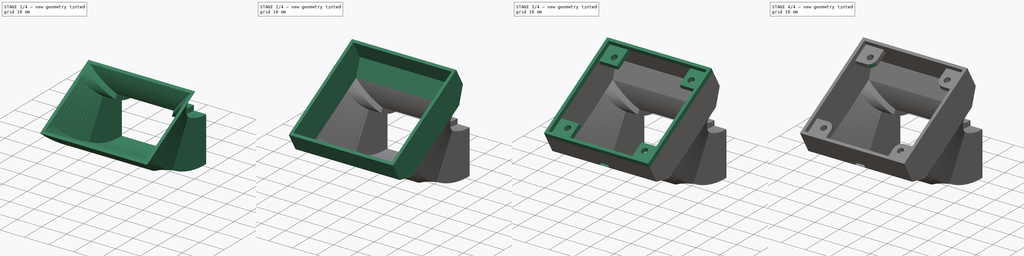
[diagram: build sequence overview — one tinted view per stage of 4, left to right]
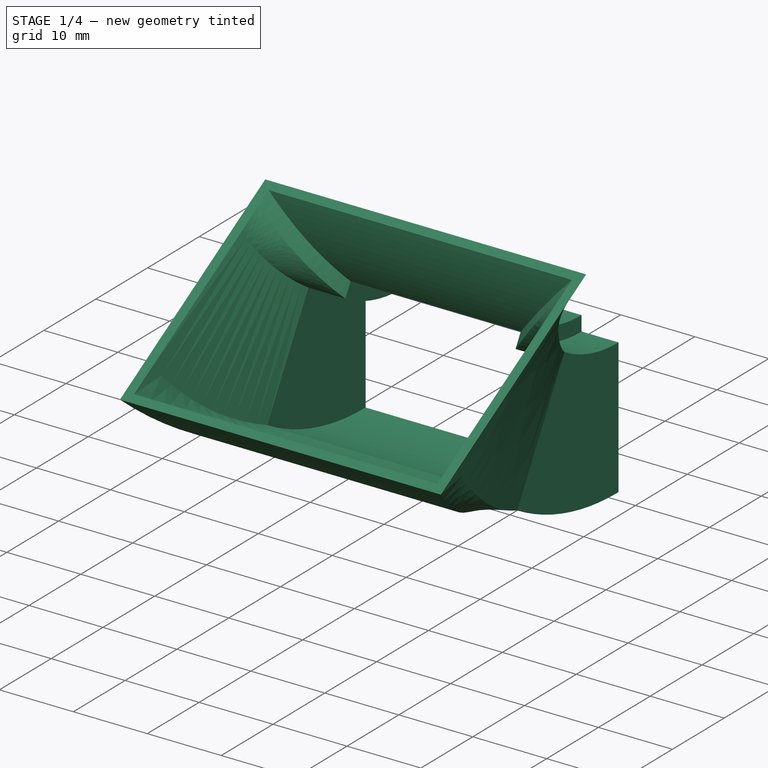
[diagram: stage 1 of 4 — iso view after this stage's code; geometry added in this stage tinted green]
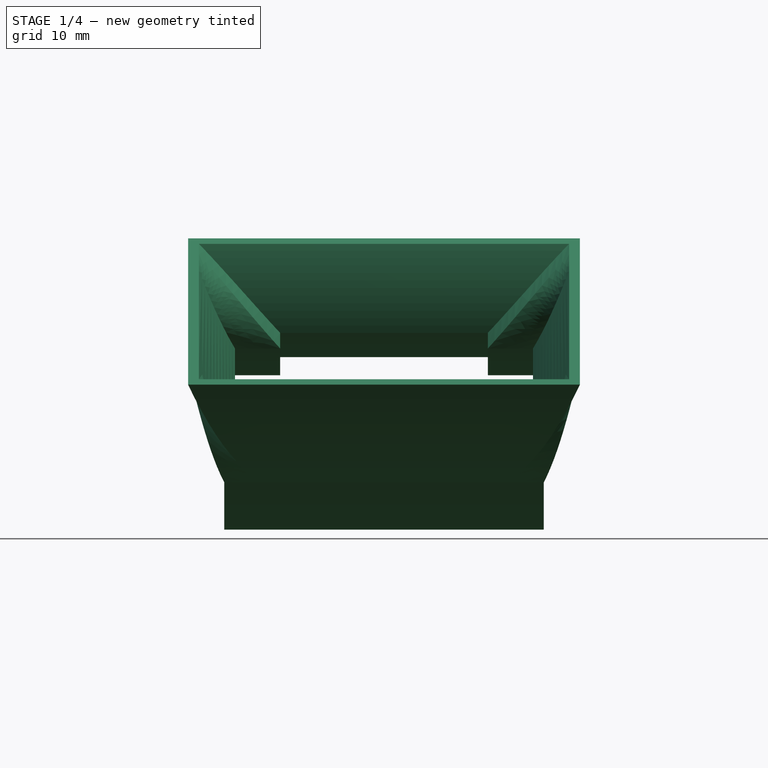
[diagram: stage 1 of 4 — front view after this stage's code; geometry added in this stage tinted green]
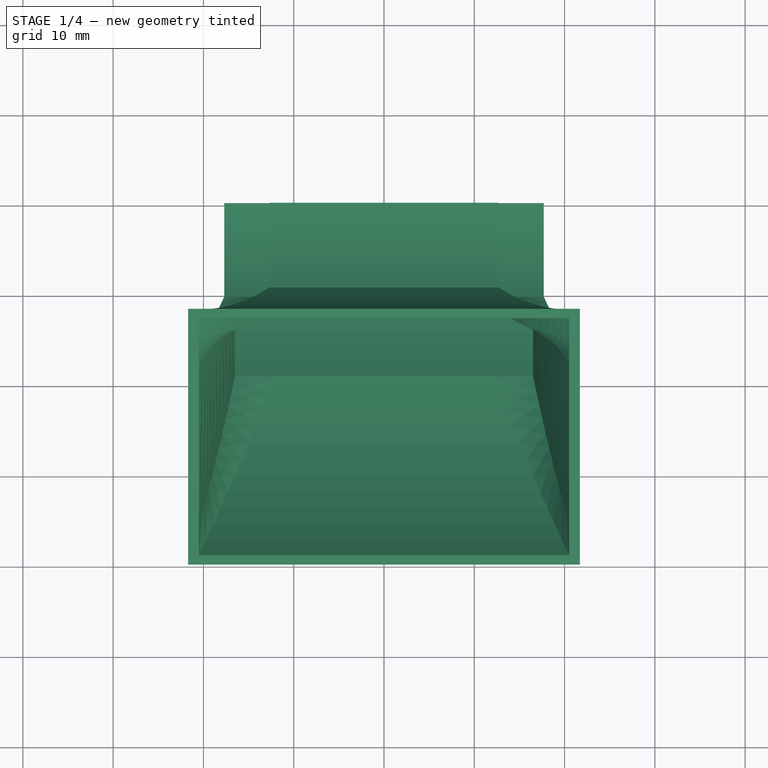
[diagram: stage 1 of 4 — top view after this stage's code; geometry added in this stage tinted green]
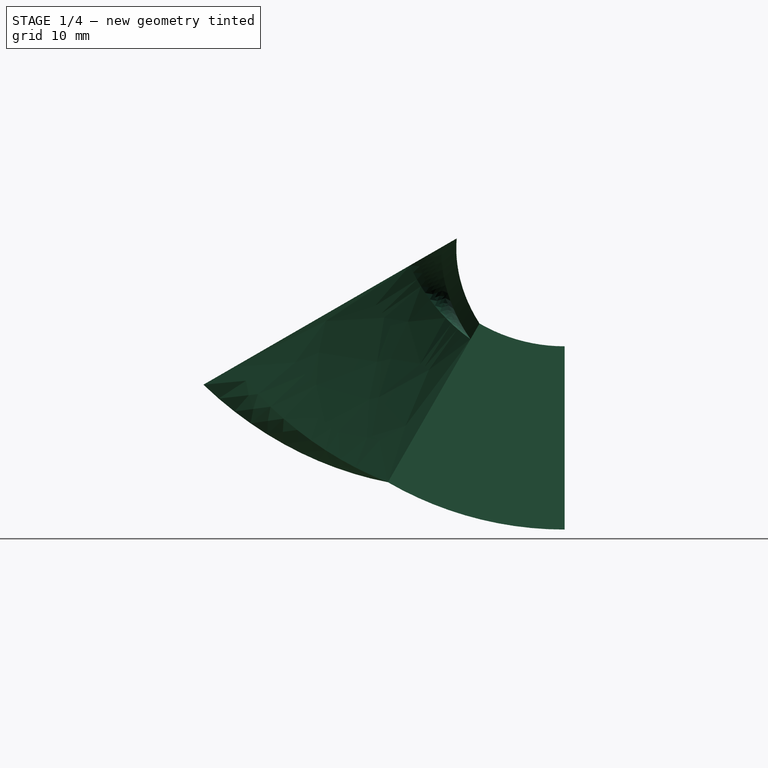
[diagram: stage 1 of 4 — right view after this stage's code; geometry added in this stage tinted green]
FCSTD DOCUMENT  (FreeCAD 0.18R15441 (Git))
Label: HotendFrontFanCase_40x40
License: All rights reserved
LicenseURL: http://en.wikipedia.org/wiki/All_rights_reserved
objects: Sketcher::SketchObject×8, PartDesign::Plane×4, PartDesign::AdditivePipe×3, PartDesign::Pad×3, PartDesign::Pocket×1, PartDesign::Fillet×1, PartDesign::Body×1, Part::FeaturePython×1, App::Part×1
note: 29 computed .brp shape members not serialized (recipe doc carries the construction recipe); baked Part::Feature solids carry a one-line shape summary decoded from their .brp

FEATURE [Sketcher::SketchObject] Sketch  label="Base"
  MapMode = 5
  Placement = pos=(0,0,0) rot=(1,0,0;1.5708rad)
  Support = -> [XZ_Plane001]
  sketch-geometry (16):
    g0: LineSegment StartX=-16.5 StartY=-7.95 StartZ=0 EndX=16.5 EndY=-7.95 EndZ=0
    g1: LineSegment StartX=-16.5 StartY=-7.95 StartZ=0 EndX=-16.5 EndY=7.95 EndZ=0
    g2: LineSegment StartX=-16.5 StartY=7.95 StartZ=0 EndX=-11.5 EndY=7.95 EndZ=0
    g3: LineSegment StartX=-11.5 StartY=7.95 StartZ=0 EndX=-11.5 EndY=9.95 EndZ=0
    g4: LineSegment StartX=-11.5 StartY=9.95 StartZ=0 EndX=11.5 EndY=9.95 EndZ=0
    g5: LineSegment StartX=11.5 StartY=9.95 StartZ=0 EndX=11.5 EndY=7.95 EndZ=0
    g6: LineSegment StartX=11.5 StartY=7.95 StartZ=0 EndX=16.5 EndY=7.95 EndZ=0
    g7: LineSegment StartX=16.5 StartY=7.95 StartZ=0 EndX=16.5 EndY=-7.95 EndZ=0
    g8: LineSegment StartX=-17.7 StartY=-9.15 StartZ=0 EndX=17.7 EndY=-9.15 EndZ=0
    g9: LineSegment StartX=-17.7 StartY=-9.15 StartZ=0 EndX=-17.7 EndY=9.15 EndZ=0
    g10: LineSegment StartX=-17.7 StartY=9.15 StartZ=0 EndX=-12.7 EndY=9.15 EndZ=0
    g11: LineSegment StartX=-12.7 StartY=9.15 StartZ=0 EndX=-12.7 EndY=11.15 EndZ=0
    g12: LineSegment StartX=-12.7 StartY=11.15 StartZ=0 EndX=12.7 EndY=11.15 EndZ=0
    g13: LineSegment StartX=12.7 StartY=11.15 StartZ=0 EndX=12.7 EndY=9.15 EndZ=0
    g14: LineSegment StartX=12.7 StartY=9.15 StartZ=0 EndX=17.7 EndY=9.15 EndZ=0
    g15: LineSegment StartX=17.7 StartY=9.15 StartZ=0 EndX=17.7 EndY=-9.15 EndZ=0
  constraints (45):
    c: Coincident(g1,g0)
    c: Coincident(g2,g1)
    c: Coincident(g3,g2)
    c: Vertical(g3)
    c: Coincident(g4,g3)
    c: Horizontal(g4)
    c: Coincident(g5,g4)
    c: Vertical(g5)
    c: Coincident(g6,g5)
    c: Horizontal(g6)
    c: Coincident(g7,g6)
    c: Coincident(g7,g0)
    c: Symmetric(g0,g0,g-2)
    c: Vertical(g7)
    c: Horizontal(g2)
    c: Equal(g2,g6)
    c: Equal(g7,g1)
    c: Distance(g0) = 33
    c: Distance(g1) = 15.9
    c: Distance(g4) = 23
    c: Distance(g3) = 2
    c: Symmetric(g0,g1,g-1)
    c: Vertical(g9)
    c: Coincident(g10,g9)
    c: Horizontal(g10)
    c: Coincident(g11,g10)
    c: Vertical(g11)
    c: Coincident(g12,g11)
    c: Horizontal(g12)
    c: Coincident(g13,g12)
    c: Vertical(g13)
    c: Coincident(g14,g13)
    c: Horizontal(g14)
    c: Coincident(g15,g14)
    c: Vertical(g15)
    c: Equal(g9,g15)
    c: Equal(g10,g14)
    c: Distance(g1,g9) = 1.2
    c: Distance(g1,g10) = 1.2
    c: Distance(g10,g3) = 1.2
    c: Distance(g3,g12) = 1.2
    c: Coincident(g8,g15)
    c: Coincident(g9,g8)
    c: Distance(g0,g8) = 1.2
    c: Symmetric(g8,g8,g-2)
FEATURE [Sketcher::SketchObject] Sketch001  label="ExtrudePathSketch"
  MapMode = 5
  Placement = pos=(0,0,0) rot=(0.57735,0.57735,0.57735;2.0944rad)
  Support = -> [YZ_Plane001]
  sketch-geometry (3):
    g0: ArcOfCircle CenterX=0 CenterY=30 CenterZ=0 NormalX=0 NormalY=0 NormalZ=1 AngleXU=0 Radius=30 StartAngle=3.66519 EndAngle=4.18879
    g1: LineSegment StartX=-25.9808 StartY=15 StartZ=0 EndX=-28.4808 EndY=19.3301 EndZ=0
    g2: ArcOfCircle CenterX=0 CenterY=30 CenterZ=0 NormalX=0 NormalY=0 NormalZ=1 AngleXU=0 Radius=30 StartAngle=4.18879 EndAngle=4.71239
  constraints (9):
    c: Angle(g0) = 0.523599
    c: Tangent(g1,g0) = 1.5708
    c: Distance(g1) = 5
    c: Radius(g0) = 30
    c: PointOnObject(g0,g-2)
    c: Coincident(g2,g0)
    c: Coincident(g2,g-1)
    c: Coincident(g0,g2)
    c: Angle(g2) = 0.523599
FEATURE [PartDesign::Plane] DatumPlane  label="PipePlane2"
  Length = 55.0626
  MapMode = 7
  Placement = pos=(-4.6242e-12,-25.9808,15) rot=(1,0,0;0.523599rad)
  ResizeMode = 0
  Support = -> [Sketch001]
  Width = 90.0133
FEATURE [Sketcher::SketchObject] Sketch002  label="Section2"
  MapMode = 5
  Placement = pos=(-4.6242e-12,-25.9808,15) rot=(1,0,0;0.523599rad)
  Support = -> [DatumPlane]
  sketch-geometry (8):
    g0: LineSegment StartX=-20.5 StartY=15 StartZ=0 EndX=20.5 EndY=15 EndZ=0
    g1: LineSegment StartX=20.5 StartY=15 StartZ=0 EndX=20.5 EndY=-15 EndZ=0
    g2: LineSegment StartX=20.5 StartY=-15 StartZ=0 EndX=-20.5 EndY=-15 EndZ=0
    g3: LineSegment StartX=-20.5 StartY=-15 StartZ=0 EndX=-20.5 EndY=15 EndZ=0
    g4: LineSegment StartX=-21.7 StartY=16.2 StartZ=0 EndX=21.7 EndY=16.2 EndZ=0
    g5: LineSegment StartX=21.7 StartY=16.2 StartZ=0 EndX=21.7 EndY=-16.2 EndZ=0
    g6: LineSegment StartX=21.7 StartY=-16.2 StartZ=0 EndX=-21.7 EndY=-16.2 EndZ=0
    g7: LineSegment StartX=-21.7 StartY=-16.2 StartZ=0 EndX=-21.7 EndY=16.2 EndZ=0
  constraints (20):
    c: Coincident(g0,g1)
    c: Coincident(g1,g2)
    c: Coincident(g2,g3)
    c: Coincident(g3,g0)
    c: Horizontal(g0)
    c: Vertical(g3)
    c: Symmetric(g0,g1,g-1)
    c: Symmetric(g1,g2,g-2)
    c: Coincident(g4,g5)
    c: Coincident(g5,g6)
    c: Coincident(g6,g7)
    c: Coincident(g7,g4)
    c: Horizontal(g4)
    c: Vertical(g7)
    c: Symmetric(g5,g4,g-1)
    c: Symmetric(g5,g6,g-2)
    c: Distance(g4,g1) = 1.2
    c: Distance(g0) = 41
    c: Distance(g0,g4) = 1.2
    c: Distance(g1) = 30
FEATURE [PartDesign::Plane] DatumPlane001  label="PipePlane3"
  Length = 55.0626
  MapMode = 7
  Placement = pos=(-5.3952e-12,-28.4808,19.3301) rot=(1,0,0;0.523599rad)
  ResizeMode = 0
  Support = -> [Sketch001]
  Width = 90.0133
FEATURE [Sketcher::SketchObject] Sketch003  label="Section3"
  MapMode = 5
  Placement = pos=(-5.3952e-12,-28.4808,19.3301) rot=(1,0,0;0.523599rad)
  Support = -> [DatumPlane001]
  sketch-geometry (8):
    g0: LineSegment StartX=-20.5 StartY=20.5 StartZ=0 EndX=20.5 EndY=20.5 EndZ=0
    g1: LineSegment StartX=20.5 StartY=20.5 StartZ=0 EndX=20.5 EndY=-20.5 EndZ=0
    g2: LineSegment StartX=20.5 StartY=-20.5 StartZ=0 EndX=-20.5 EndY=-20.5 EndZ=0
    g3: LineSegment StartX=-20.5 StartY=-20.5 StartZ=0 EndX=-20.5 EndY=20.5 EndZ=0
    g4: LineSegment StartX=-21.7 StartY=21.7 StartZ=0 EndX=21.7 EndY=21.7 EndZ=0
    g5: LineSegment StartX=21.7 StartY=21.7 StartZ=0 EndX=21.7 EndY=-21.7 EndZ=0
    g6: LineSegment StartX=21.7 StartY=-21.7 StartZ=0 EndX=-21.7 EndY=-21.7 EndZ=0
    g7: LineSegment StartX=-21.7 StartY=-21.7 StartZ=0 EndX=-21.7 EndY=21.7 EndZ=0
  constraints (20):
    c: Coincident(g0,g1)
    c: Coincident(g1,g2)
    c: Coincident(g2,g3)
    c: Coincident(g3,g0)
    c: Horizontal(g0)
    c: Vertical(g3)
    c: Symmetric(g0,g1,g-1)
    c: Symmetric(g1,g2,g-2)
    c: Coincident(g4,g5)
    c: Coincident(g5,g6)
    c: Coincident(g6,g7)
    c: Coincident(g7,g4)
    c: Horizontal(g4)
    c: Vertical(g7)
    c: Symmetric(g5,g4,g-1)
    c: Symmetric(g5,g6,g-2)
    c: Distance(g4,g1) = 1.2
    c: Distance(g0) = 41
    c: Distance(g0,g4) = 1.2
    c: Distance(g1) = 41
FEATURE [PartDesign::Plane] DatumPlane002  label="PipePlane4"
  AttachmentOffset = pos=(0,0,8) rot=(0,0,1;0rad)
  Length = 55.0626
  MapMode = 2
  Placement = pos=(-6.6286e-12,-32.4808,26.2583) rot=(1,0,0;0.523599rad)
  ResizeMode = 0
  Support = -> [DatumPlane001]
  Width = 90.0133
FEATURE [Sketcher::SketchObject] Sketch004  label="FanClipSketch"
  MapMode = 5
  Placement = pos=(-6.6286e-12,-32.4808,26.2583) rot=(1,0,0;0.523599rad)
  Support = -> [DatumPlane002]
  sketch-geometry (20):
    g0: LineSegment StartX=-21.7 StartY=21.7 StartZ=0 EndX=21.7 EndY=21.7 EndZ=0
    g1: LineSegment StartX=21.7 StartY=21.7 StartZ=0 EndX=21.7 EndY=-21.7 EndZ=0
    g2: LineSegment StartX=21.7 StartY=-21.7 StartZ=0 EndX=-21.7 EndY=-21.7 EndZ=0
    g3: LineSegment StartX=-21.7 StartY=-21.7 StartZ=0 EndX=-21.7 EndY=21.7 EndZ=0
    g4: LineSegment StartX=-20.5 StartY=13 StartZ=0 EndX=-20.5 EndY=-13 EndZ=0
    g5: LineSegment StartX=-20.5 StartY=-13 StartZ=0 EndX=-13 EndY=-13 EndZ=0
    g6: LineSegment StartX=-13 StartY=-13 StartZ=0 EndX=-13 EndY=-20.5 EndZ=0
    g7: LineSegment StartX=-13 StartY=-20.5 StartZ=0 EndX=13 EndY=-20.5 EndZ=0
    g8: LineSegment StartX=13 StartY=-20.5 StartZ=0 EndX=13 EndY=-13 EndZ=0
    g9: LineSegment StartX=13 StartY=-13 StartZ=0 EndX=20.5 EndY=-13 EndZ=0
    g10: LineSegment StartX=20.5 StartY=-13 StartZ=0 EndX=20.5 EndY=13 EndZ=0
    g11: LineSegment StartX=20.5 StartY=13 StartZ=0 EndX=13 EndY=13 EndZ=0
    g12: LineSegment StartX=13 StartY=13 StartZ=0 EndX=13 EndY=20.5 EndZ=0
    g13: LineSegment StartX=13 StartY=20.5 StartZ=0 EndX=-13 EndY=20.5 EndZ=0
    g14: LineSegment StartX=-13 StartY=20.5 StartZ=0 EndX=-13 EndY=13 EndZ=0
    g15: LineSegment StartX=-13 StartY=13 StartZ=0 EndX=-20.5 EndY=13 EndZ=0
    g16: Circle CenterX=-16 CenterY=16 CenterZ=0 NormalX=0 NormalY=0 NormalZ=1 AngleXU=0 Radius=1.25
    g17: Circle CenterX=16 CenterY=16 CenterZ=0 NormalX=0 NormalY=0 NormalZ=1 AngleXU=0 Radius=1.25
    g18: Circle CenterX=16 CenterY=-16 CenterZ=0 NormalX=0 NormalY=0 NormalZ=1 AngleXU=0 Radius=1.25
    g19: Circle CenterX=-16 CenterY=-16 CenterZ=0 NormalX=0 NormalY=0 NormalZ=1 AngleXU=0 Radius=1.25
  constraints (53):
    c: Coincident(g0,g1)
    c: Coincident(g1,g2)
    c: Coincident(g2,g3)
    c: Coincident(g3,g0)
    c: Horizontal(g0)
    c: Vertical(g3)
    c: Symmetric(g1,g0,g-1)
    c: Symmetric(g1,g2,g-2)
    c: Coincident(g5,g4)
    c: Horizontal(g5)
    c: Coincident(g6,g5)
    c: Vertical(g6)
    c: Coincident(g7,g6)
    c: Coincident(g8,g7)
    c: Vertical(g8)
    c: Coincident(g9,g8)
    c: Horizontal(g9)
    c: Coincident(g10,g9)
    c: Vertical(g10)
    c: Coincident(g11,g10)
    c: Horizontal(g11)
    c: Coincident(g12,g11)
    c: Vertical(g12)
    c: Coincident(g13,g12)
    c: Horizontal(g13)
    c: Coincident(g14,g13)
    c: Coincident(g15,g14)
    c: Coincident(g15,g4)
    c: Equal(g13,g7)
    c: Equal(g4,g10)
    c: Equal(g6,g5)
    c: Equal(g5,g15)
    c: Equal(g15,g14)
    c: Equal(g14,g12)
    c: Equal(g12,g11)
    c: Equal(g11,g9)
    c: Equal(g9,g8)
    c: Symmetric(g4,g4,g-1)
    c: Symmetric(g6,g7,g-2)
    c: Distance(g4,g10) = 41
    c: Distance(g12,g7) = 41
    c: Distance(g10,g1) = 1.2
    c: Distance(g12,g0) = 1.2
    c: Symmetric(g18,g19,g-2)
    c: Symmetric(g18,g17,g-1)
    c: Symmetric(g17,g16,g-2)
    c: Equal(g19,g18)
    c: Equal(g18,g17)
    c: Equal(g17,g16)
    c: Radius(g16) = 1.25
    c: Distance(g19,g18) = 32
    c: Distance(g18,g17) = 32
    c: Distance(g16,g15) = 3
FEATURE [Sketcher::SketchObject] Sketch005  label="FanClipWallSketch"
  MapMode = 5
  Placement = pos=(-6.6286e-12,-32.4808,26.2583) rot=(1,0,0;0.523599rad)
  Support = -> [DatumPlane002]
  sketch-geometry (8):
    g0: LineSegment StartX=-20.5 StartY=20.5 StartZ=0 EndX=20.5 EndY=20.5 EndZ=0
    g1: LineSegment StartX=20.5 StartY=20.5 StartZ=0 EndX=20.5 EndY=-20.5 EndZ=0
    g2: LineSegment StartX=20.5 StartY=-20.5 StartZ=0 EndX=-20.5 EndY=-20.5 EndZ=0
    g3: LineSegment StartX=-20.5 StartY=-20.5 StartZ=0 EndX=-20.5 EndY=20.5 EndZ=0
    g4: LineSegment StartX=-21.7 StartY=21.7 StartZ=0 EndX=21.7 EndY=21.7 EndZ=0
    g5: LineSegment StartX=21.7 StartY=21.7 StartZ=0 EndX=21.7 EndY=-21.7 EndZ=0
    g6: LineSegment StartX=21.7 StartY=-21.7 StartZ=0 EndX=-21.7 EndY=-21.7 EndZ=0
    g7: LineSegment StartX=-21.7 StartY=-21.7 StartZ=0 EndX=-21.7 EndY=21.7 EndZ=0
  constraints (20):
    c: Coincident(g0,g1)
    c: Coincident(g1,g2)
    c: Coincident(g2,g3)
    c: Coincident(g3,g0)
    c: Horizontal(g0)
    c: Vertical(g3)
    c: Symmetric(g0,g1,g-1)
    c: Symmetric(g1,g2,g-2)
    c: Coincident(g4,g5)
    c: Coincident(g5,g6)
    c: Coincident(g6,g7)
    c: Coincident(g7,g4)
    c: Horizontal(g4)
    c: Vertical(g7)
    c: Symmetric(g5,g4,g-1)
    c: Symmetric(g5,g6,g-2)
    c: Distance(g4,g1) = 1.2
    c: Distance(g0) = 41
    c: Distance(g0,g4) = 1.2
    c: Distance(g1) = 41
FEATURE [PartDesign::Plane] DatumPlane003  label="PipePlane1"
  Length = 54.6908
  MapMode = 7
  Placement = pos=(-2.1458e-12,-15,4.01924) rot=(1,0,0;1.0472rad)
  ResizeMode = 0
  Support = -> [Sketch001]
  Width = 84.7245
FEATURE [Sketcher::SketchObject] Sketch006  label="Section1"
  MapMode = 5
  Placement = pos=(-2.1458e-12,-15,4.01924) rot=(1,0,0;1.0472rad)
  Support = -> [DatumPlane003]
  sketch-geometry (16):
    g0: LineSegment StartX=-16.5 StartY=-7.95 StartZ=0 EndX=16.5 EndY=-7.95 EndZ=0
    g1: LineSegment StartX=-16.5 StartY=-7.95 StartZ=0 EndX=-16.5 EndY=7.95 EndZ=0
    g2: LineSegment StartX=-16.5 StartY=7.95 StartZ=0 EndX=-11.5 EndY=7.95 EndZ=0
    g3: LineSegment StartX=-11.5 StartY=7.95 StartZ=0 EndX=-11.5 EndY=9.95 EndZ=0
    g4: LineSegment StartX=-11.5 StartY=9.95 StartZ=0 EndX=11.5 EndY=9.95 EndZ=0
    g5: LineSegment StartX=11.5 StartY=9.95 StartZ=0 EndX=11.5 EndY=7.95 EndZ=0
    g6: LineSegment StartX=11.5 StartY=7.95 StartZ=0 EndX=16.5 EndY=7.95 EndZ=0
    g7: LineSegment StartX=16.5 StartY=7.95 StartZ=0 EndX=16.5 EndY=-7.95 EndZ=0
    g8: LineSegment StartX=-17.7 StartY=-9.15 StartZ=0 EndX=17.7 EndY=-9.15 EndZ=0
    g9: LineSegment StartX=-17.7 StartY=-9.15 StartZ=0 EndX=-17.7 EndY=9.15 EndZ=0
    g10: LineSegment StartX=-17.7 StartY=9.15 StartZ=0 EndX=-12.7 EndY=9.15 EndZ=0
    g11: LineSegment StartX=-12.7 StartY=9.15 StartZ=0 EndX=-12.7 EndY=11.15 EndZ=0
    g12: LineSegment StartX=-12.7 StartY=11.15 StartZ=0 EndX=12.7 EndY=11.15 EndZ=0
    g13: LineSegment StartX=12.7 StartY=11.15 StartZ=0 EndX=12.7 EndY=9.15 EndZ=0
    g14: LineSegment StartX=12.7 StartY=9.15 StartZ=0 EndX=17.7 EndY=9.15 EndZ=0
    g15: LineSegment StartX=17.7 StartY=9.15 StartZ=0 EndX=17.7 EndY=-9.15 EndZ=0
  constraints (45):
    c: Coincident(g1,g0)
    c: Coincident(g2,g1)
    c: Coincident(g3,g2)
    c: Vertical(g3)
    c: Coincident(g4,g3)
    c: Horizontal(g4)
    c: Coincident(g5,g4)
    c: Vertical(g5)
    c: Coincident(g6,g5)
    c: Horizontal(g6)
    c: Coincident(g7,g6)
    c: Coincident(g7,g0)
    c: Symmetric(g0,g0,g-2)
    c: Vertical(g7)
    c: Horizontal(g2)
    c: Equal(g2,g6)
    c: Equal(g7,g1)
    c: Distance(g0) = 33
    c: Distance(g1) = 15.9
    c: Distance(g4) = 23
    c: Distance(g3) = 2
    c: Symmetric(g0,g1,g-1)
    c: Vertical(g9)
    c: Coincident(g10,g9)
    c: Horizontal(g10)
    c: Coincident(g11,g10)
    c: Vertical(g11)
    c: Coincident(g12,g11)
    c: Horizontal(g12)
    c: Coincident(g13,g12)
    c: Vertical(g13)
    c: Coincident(g14,g13)
    c: Horizontal(g14)
    c: Coincident(g15,g14)
    c: Vertical(g15)
    c: Equal(g9,g15)
    c: Equal(g10,g14)
    c: Distance(g1,g9) = 1.2
    c: Distance(g1,g10) = 1.2
    c: Distance(g10,g3) = 1.2
    c: Distance(g3,g12) = 1.2
    c: Coincident(g8,g15)
    c: Coincident(g9,g8)
    c: Distance(g0,g8) = 1.2
    c: Symmetric(g8,g8,g-2)
FEATURE [PartDesign::AdditivePipe] AdditivePipe  label="PipeBase1"
  AuxilleryCurvelinear = true
  AuxillerySpineTangent = false
  Binormal = (0,0,0)
  Mode = 0
  Placement = pos=(0,0,0) rot=(1,0,0;1.5708rad)
  Profile = -> Sketch
  Spine = -> Sketch001 [Edge3]
  SpineTangent = false
  Transformation = 0
  Transition = 0
FEATURE [PartDesign::AdditivePipe] AdditivePipe001  label="PipeSection2"
  AuxilleryCurvelinear = true
  AuxillerySpineTangent = false
  BaseFeature = -> AdditivePipe
  Binormal = (0,0,0)
  Mode = 0
  Placement = pos=(0,0,0) rot=(1,0,0;1.5708rad)
  Profile = -> Sketch006
  Sections = -> [Sketch002]
  Spine = -> Sketch001 [Edge2]
  SpineTangent = false
  Transformation = 1
  Transition = 0
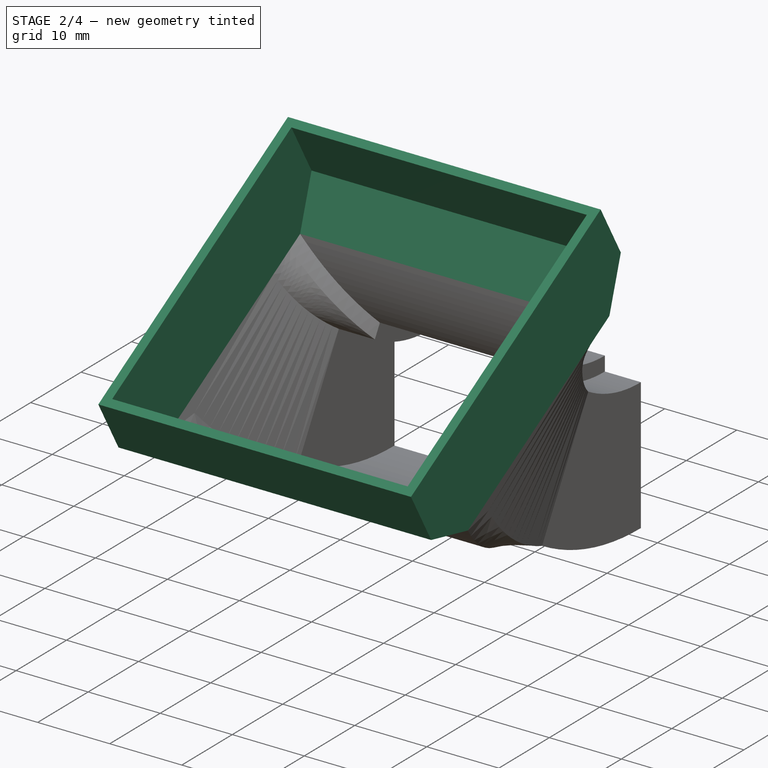
[diagram: stage 2 of 4 — iso view after this stage's code; geometry added in this stage tinted green]
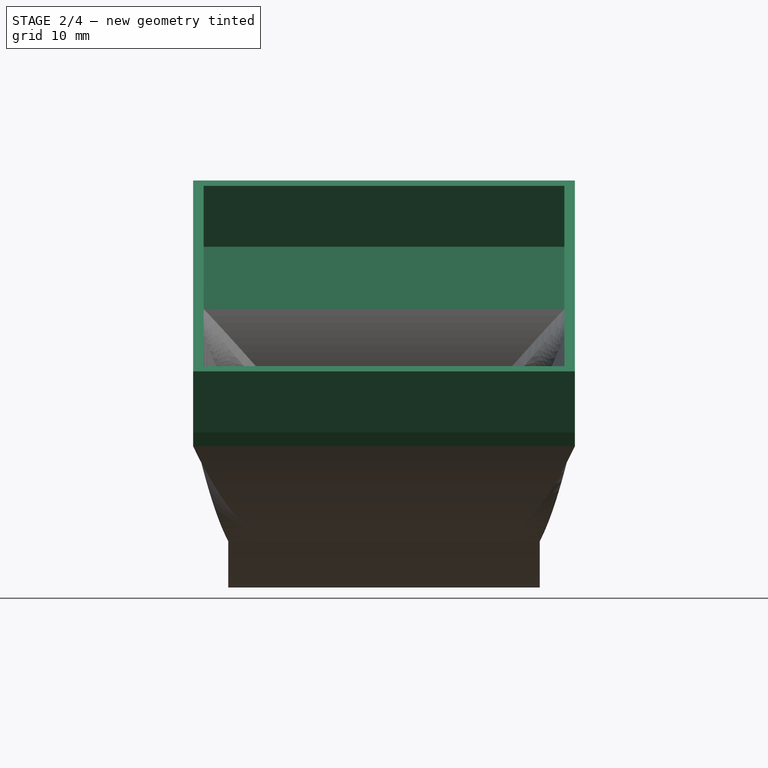
[diagram: stage 2 of 4 — front view after this stage's code; geometry added in this stage tinted green]
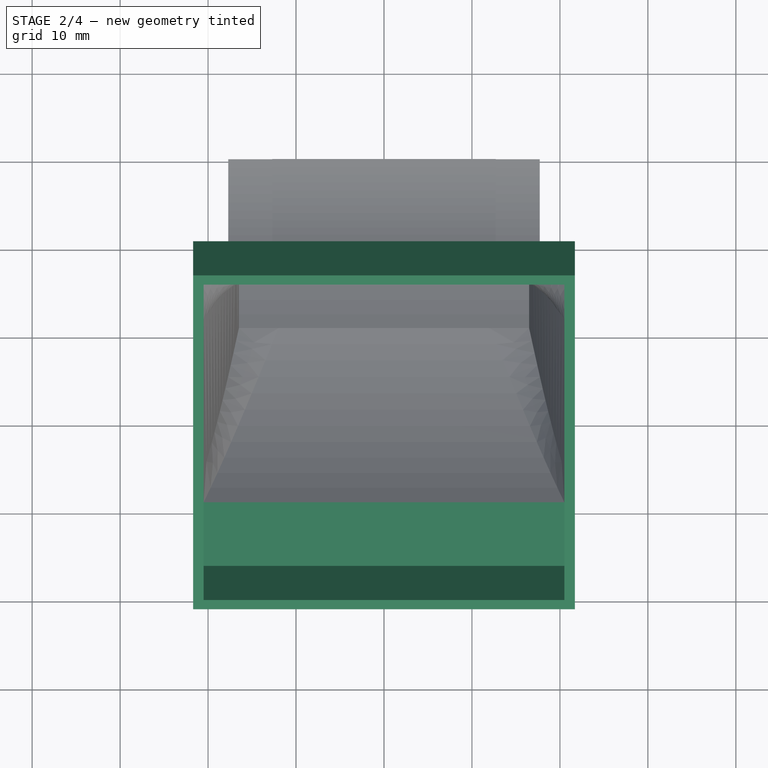
[diagram: stage 2 of 4 — top view after this stage's code; geometry added in this stage tinted green]
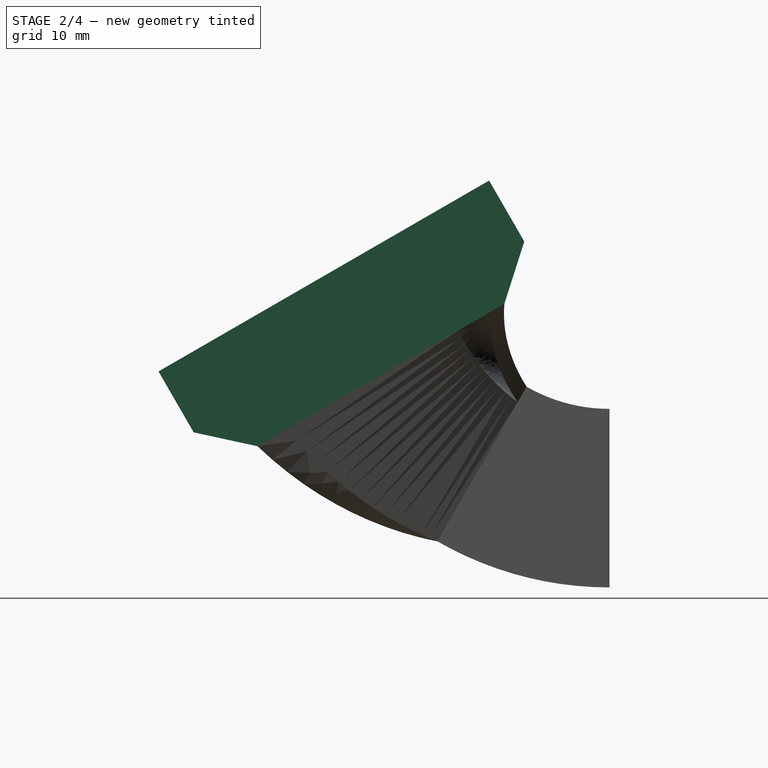
[diagram: stage 2 of 4 — right view after this stage's code; geometry added in this stage tinted green]
FEATURE [PartDesign::AdditivePipe] AdditivePipe002  label="PipeSection3"
  AuxilleryCurvelinear = true
  AuxillerySpineTangent = false
  BaseFeature = -> AdditivePipe001
  Binormal = (0,0,0)
  Mode = 0
  Placement = pos=(0,0,0) rot=(1,0,0;1.5708rad)
  Profile = -> Sketch002
  Sections = -> [Sketch003]
  Spine = -> Sketch001 [Edge1]
  SpineTangent = false
  Transformation = 1
  Transition = 0
FEATURE [PartDesign::Pad] Pad  label="PipeSection4"
  BaseFeature = -> AdditivePipe002
  Length = 10
  Length2 = 100
  Placement = pos=(0,0,0) rot=(1,0,0;1.5708rad)
  Profile = -> Sketch003
  Type = 3
  UpToFace = -> DatumPlane002
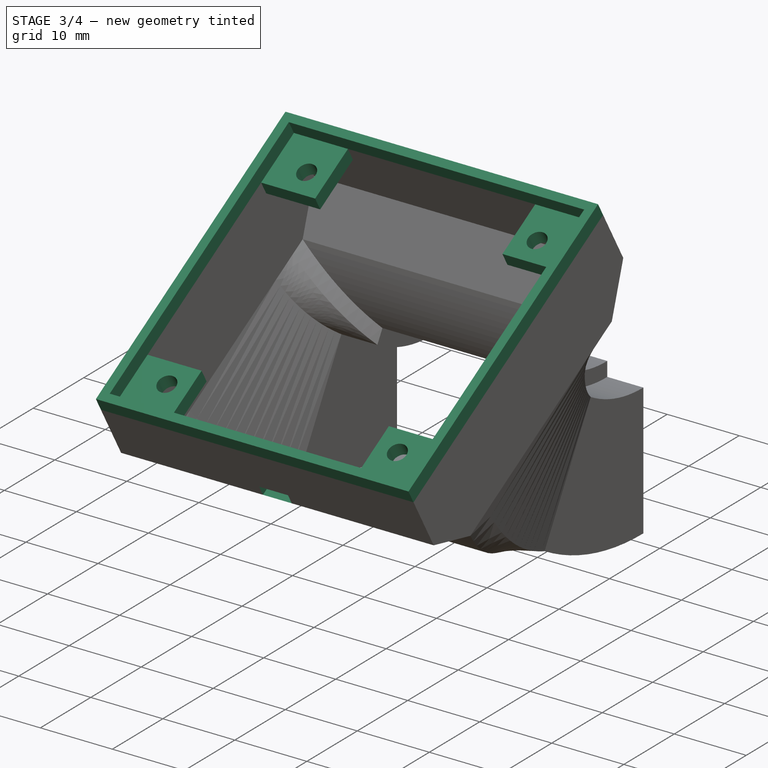
[diagram: stage 3 of 4 — iso view after this stage's code; geometry added in this stage tinted green]
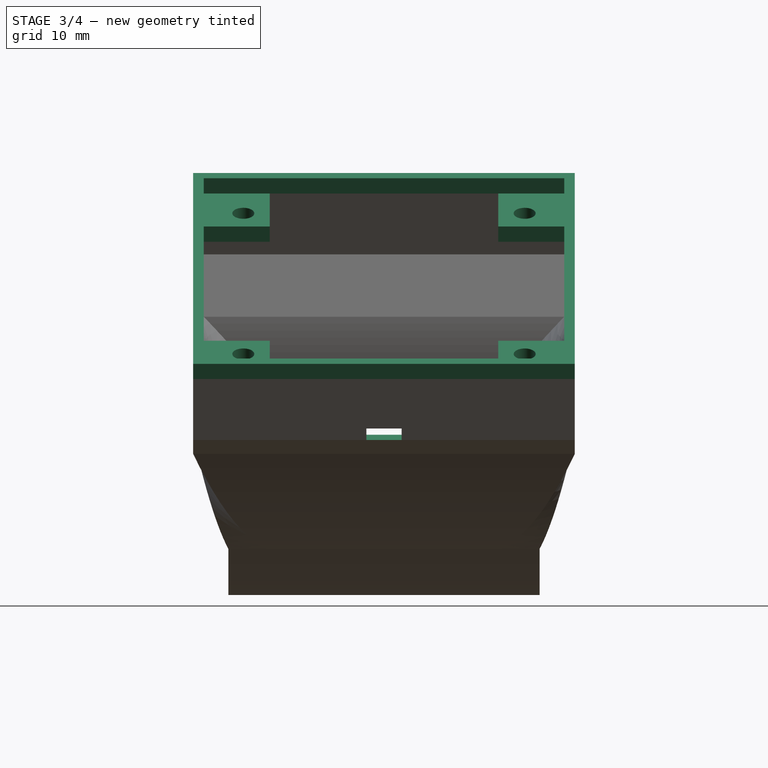
[diagram: stage 3 of 4 — front view after this stage's code; geometry added in this stage tinted green]
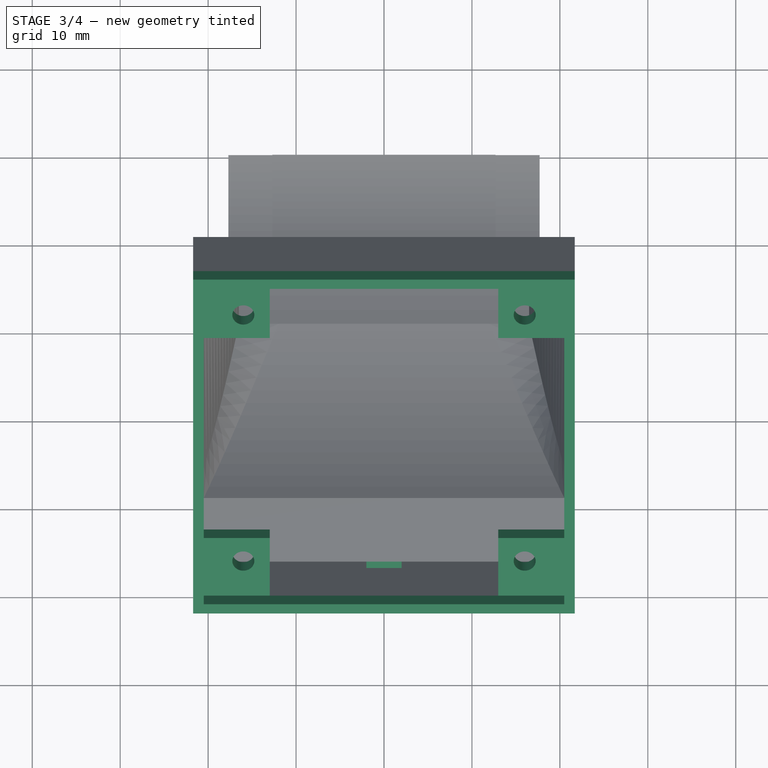
[diagram: stage 3 of 4 — top view after this stage's code; geometry added in this stage tinted green]
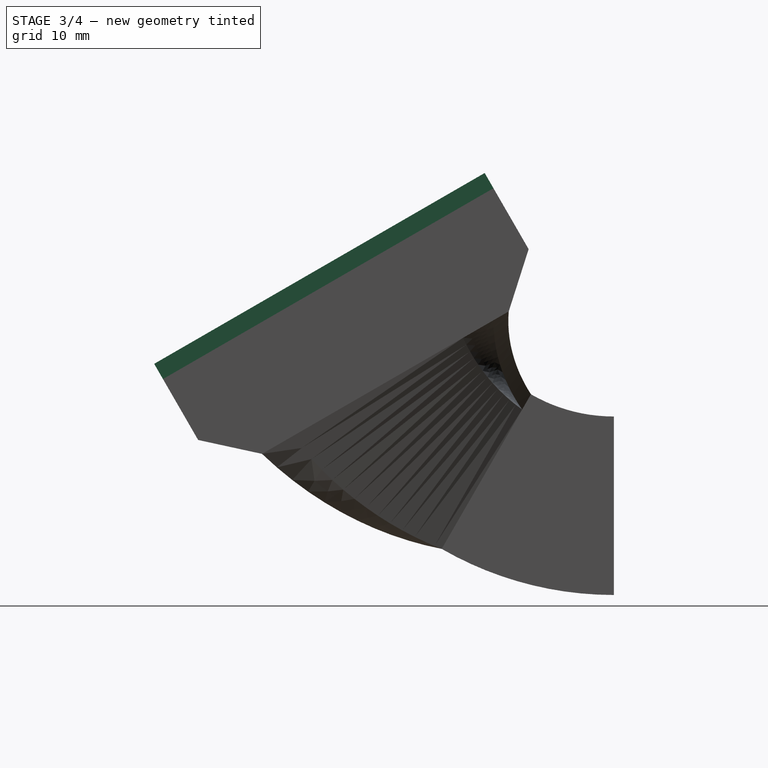
[diagram: stage 3 of 4 — right view after this stage's code; geometry added in this stage tinted green]
FEATURE [PartDesign::Pad] Pad001  label="FanClipPad"
  BaseFeature = -> Pad
  Length = 2
  Length2 = 100
  Placement = pos=(0,0,0) rot=(1,0,0;1.5708rad)
  Profile = -> Sketch004
  Reversed = true
  Type = 0
FEATURE [PartDesign::Pad] Pad002  label="FanClipWallPad"
  BaseFeature = -> Pad001
  Length = 2
  Length2 = 100
  Placement = pos=(0,0,0) rot=(1,0,0;1.5708rad)
  Profile = -> Sketch005
  Type = 0
FEATURE [Sketcher::SketchObject] Sketch007  label="FanWiresSketch"
  ExternalGeometry = -> [Sketch003]
  MapMode = 5
  Placement = pos=(-5.3952e-12,-28.4808,19.3301) rot=(1,0,0;0.523599rad)
  Support = -> [DatumPlane001]
  sketch-geometry (4):
    g0: LineSegment StartX=-2 StartY=-20.5 StartZ=0 EndX=2 EndY=-20.5 EndZ=0
    g1: LineSegment StartX=2 StartY=-20.5 StartZ=0 EndX=2 EndY=-22.5 EndZ=0
    g2: LineSegment StartX=2 StartY=-22.5 StartZ=0 EndX=-2 EndY=-22.5 EndZ=0
    g3: LineSegment StartX=-2 StartY=-22.5 StartZ=0 EndX=-2 EndY=-20.5 EndZ=0
  constraints (11):
    c: Coincident(g0,g1)
    c: Coincident(g1,g2)
    c: Coincident(g2,g3)
    c: Coincident(g3,g0)
    c: Horizontal(g2)
    c: Vertical(g1)
    c: Vertical(g3)
    c: PointOnObject(g0,g-3)
    c: Symmetric(g0,g0,g-2)
    c: Distance(g3) = 2
    c: Distance(g2) = 4
FEATURE [PartDesign::Pocket] Pocket  label="FanWiresPocket"
  BaseFeature = -> Pad002
  Length = 1.5
  Length2 = 100
  Placement = pos=(0,0,0) rot=(1,0,0;1.5708rad)
  Profile = -> Sketch007
  Reversed = true
  Type = 0
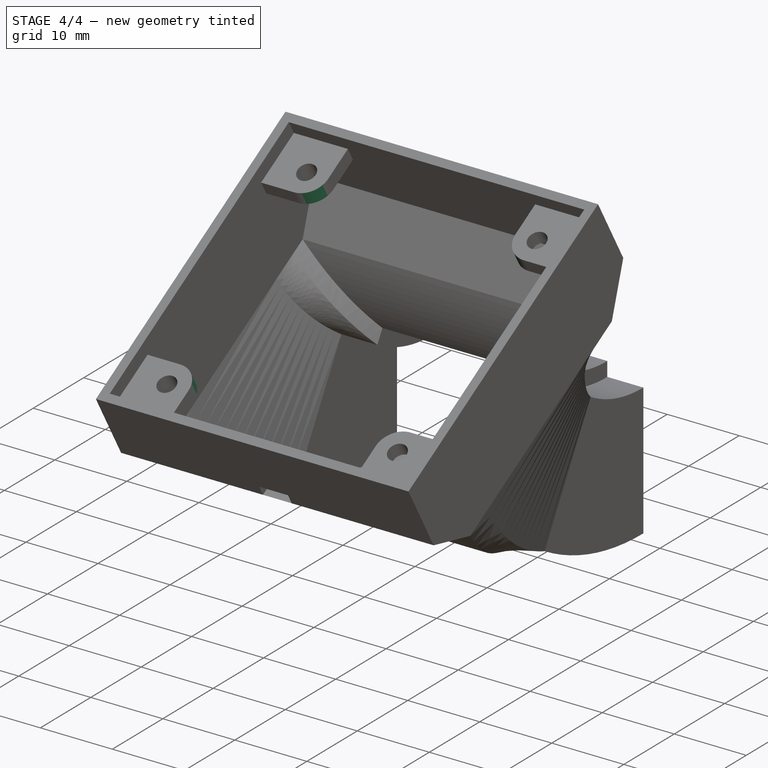
[diagram: stage 4 of 4 — iso view after this stage's code; geometry added in this stage tinted green]
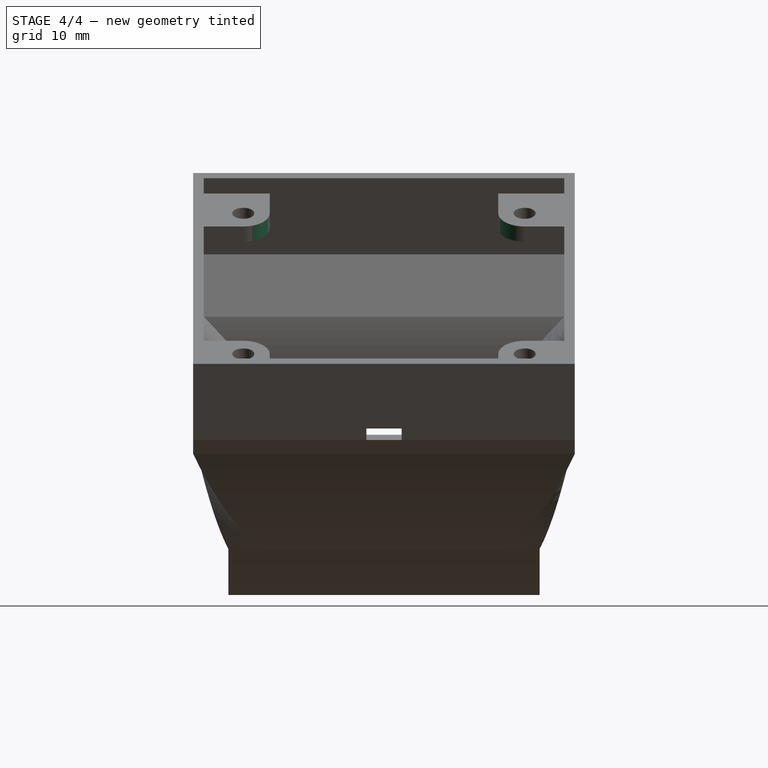
[diagram: stage 4 of 4 — front view after this stage's code; geometry added in this stage tinted green]
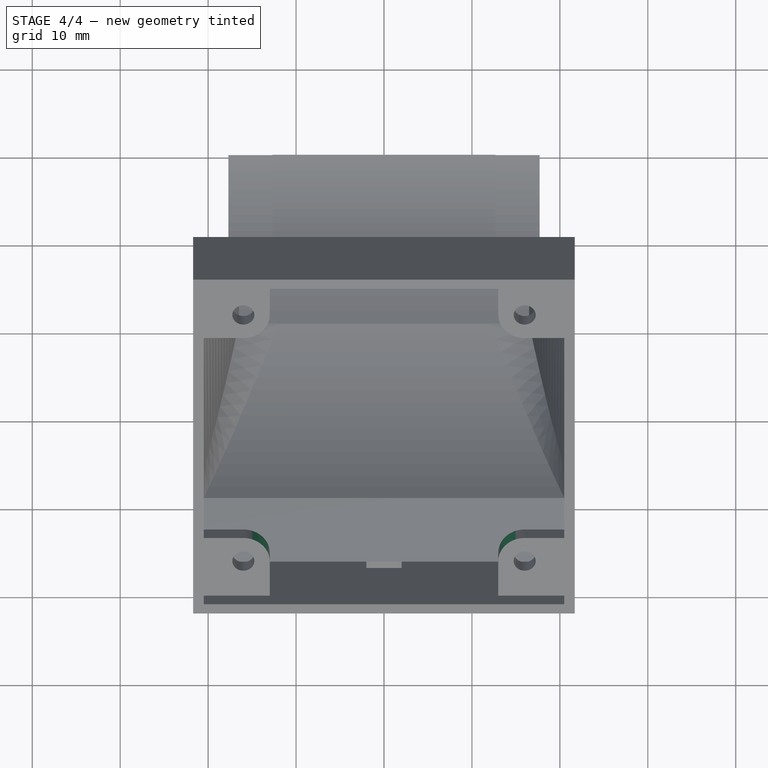
[diagram: stage 4 of 4 — top view after this stage's code; geometry added in this stage tinted green]
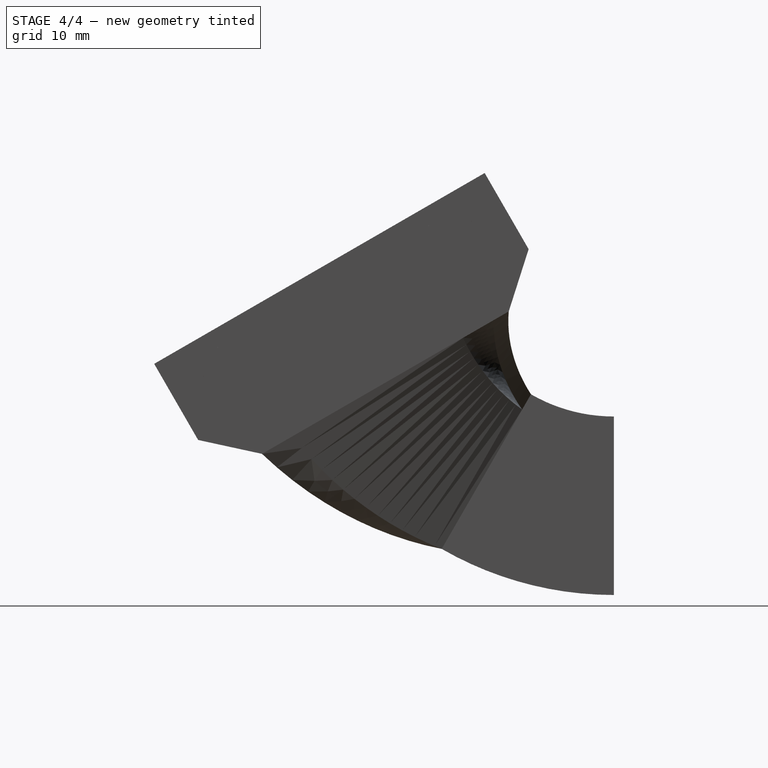
[diagram: stage 4 of 4 — right view after this stage's code; geometry added in this stage tinted green]
FEATURE [PartDesign::Fillet] Fillet  label="ClipFillet"
  Base = -> Pocket [Edge168,Edge163,Edge190,Edge181]
  BaseFeature = -> Pocket
  Placement = pos=(0,0,0) rot=(1,0,0;1.5708rad)
  Radius = 3
FEATURE [PartDesign::Body] Body  label="FanCaseBody"
  Group = -> [Sketch001,Sketch,DatumPlane003,Sketch006,DatumPlane,Sketch002,DatumPlane001,Sketch003,DatumPlane002,Sketch004,Sketch005,AdditivePipe,AdditivePipe001,AdditivePipe002,Pad,Pad001,Pad002,Sketch007,Pocket,Fillet]
  Origin = -> Origin001
  Tip = -> Fillet
FEATURE [Part::FeaturePython] refine  label="FanCaseBody_Refined"  # WARN: FeaturePython — macro-defined, semantics opaque (R4)
  Base = -> Body
FEATURE [App::Part] Part  label="FanCasePart"
  Group = -> [Body,refine]
  License = CC BY 3.0
  LicenseURL = http://creativecommons.org/licenses/by/3.0/
  Origin = -> Origin
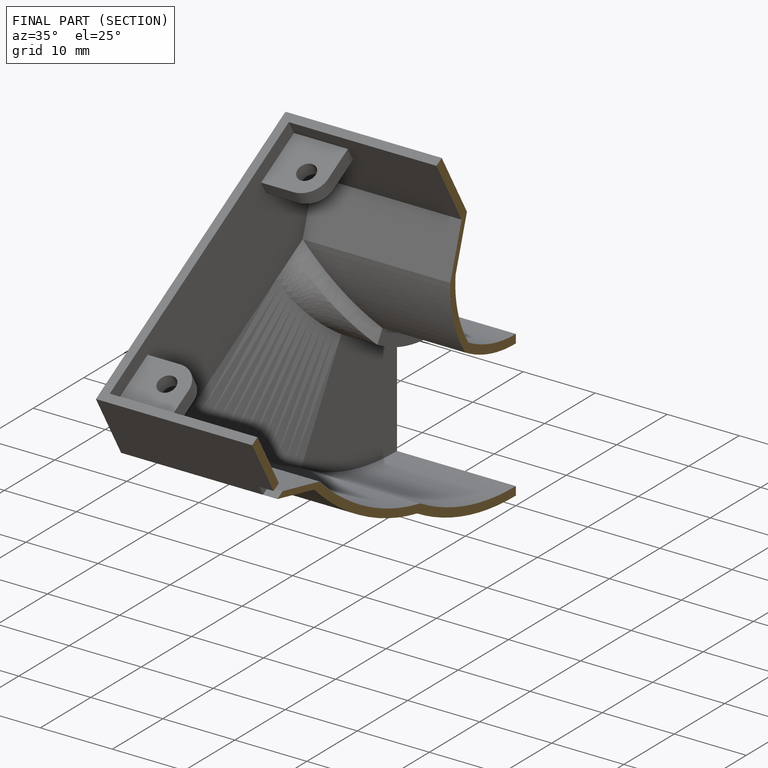
[diagram: finished part — half-section view (interior)]
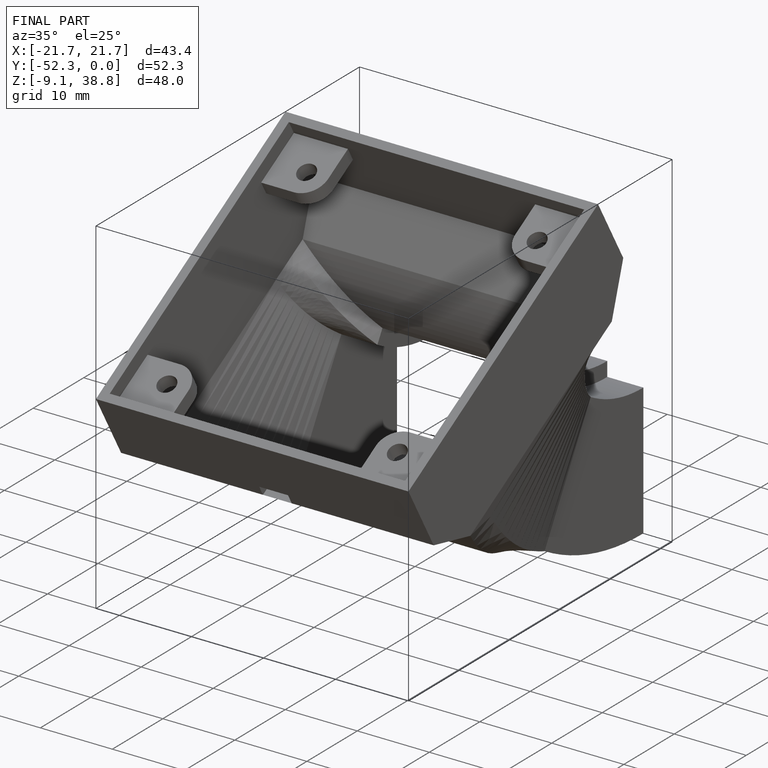
[diagram: finished part — iso view with bounding-box wireframe]
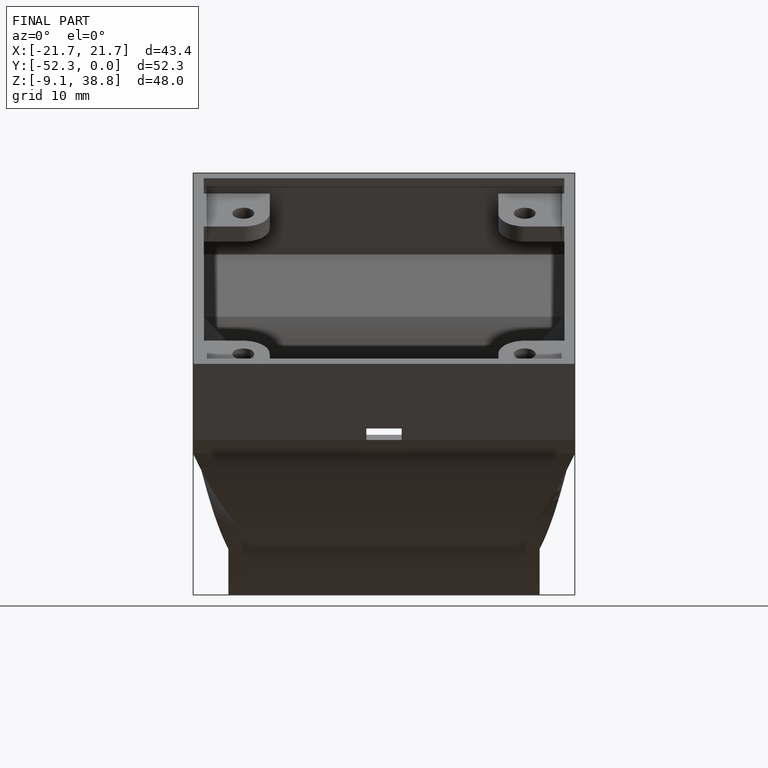
[diagram: finished part — front view with bounding-box wireframe]
